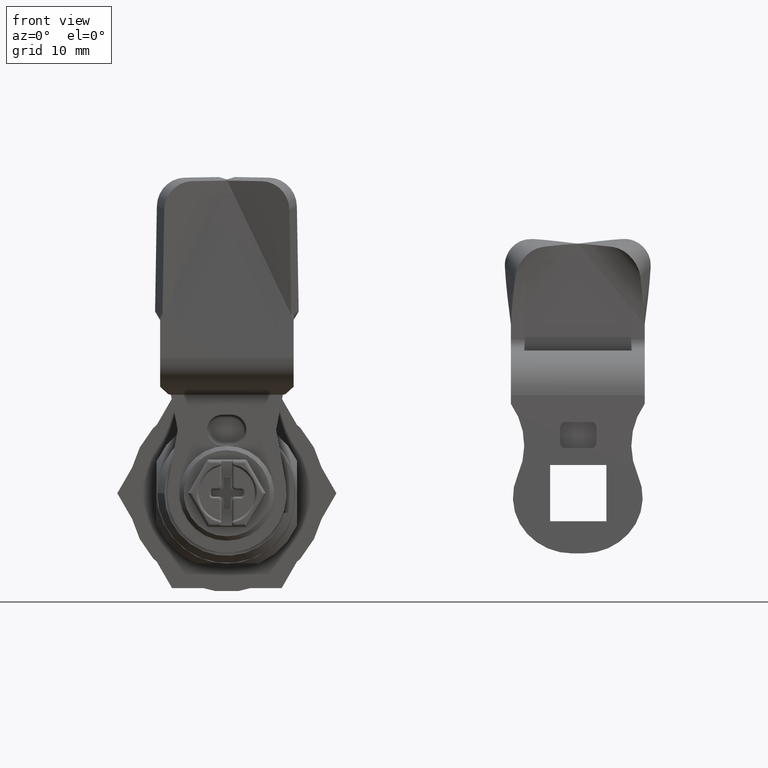
[diagram: clean part render]
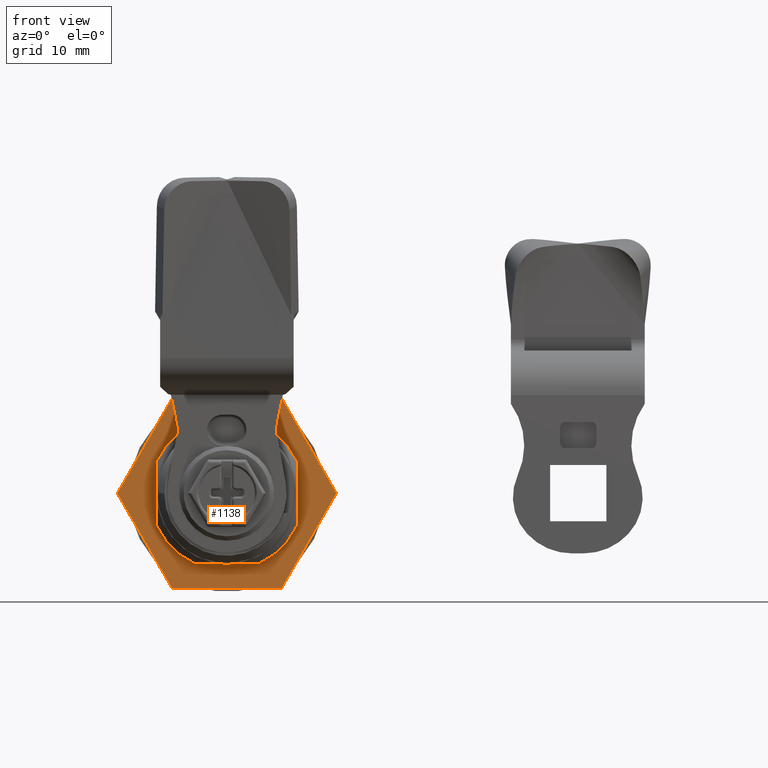
[diagram: same view with one face highlighted and labeled with its STEP entity id]
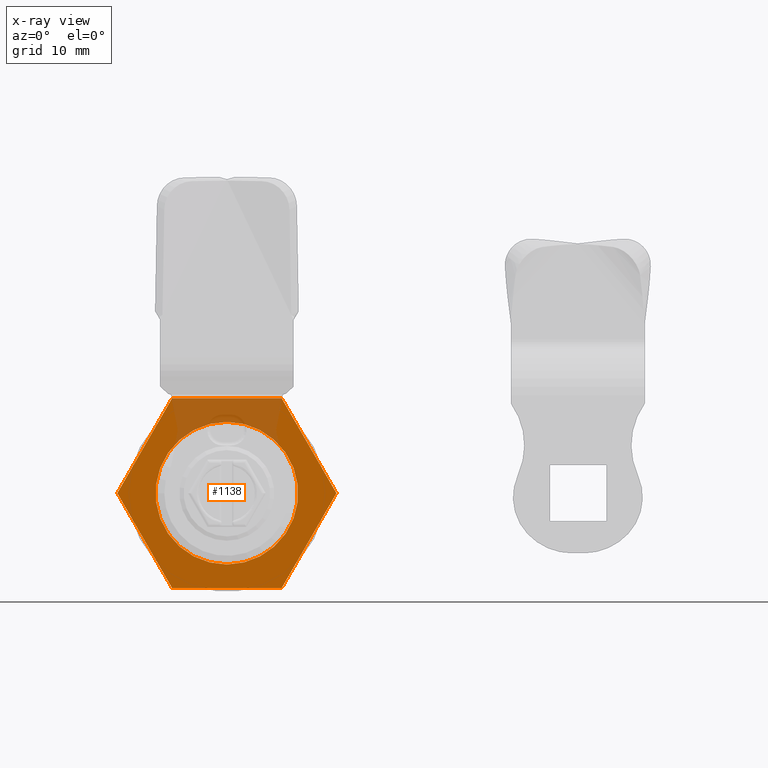
[diagram: x-ray of the same camera — body ghosted, the highlighted face saturated]
A machine part, front view. The second image highlights one B-rep face of the part: STEP entity #1138.
The next image is the same camera in x-ray: the body ghosted, the highlighted face saturated — about 21% of this face is hidden behind the body in this view.
In plain terms, the highlighted planar face has unit normal (0, -1, 0).
Its self-contained STEP definition (entity closure, byte-faithful):
#105 = DIRECTION ( 'NONE',  ( 1.000000000000000000, 0.000000000000000000, 0.000000000000000000 ) ) ;
#149 = CARTESIAN_POINT ( 'NONE',  ( 0.000000000000000000, -0.2354803149606299328, 0.000000000000000000 ) ) ;
#1138 = ADVANCED_FACE ( 'NONE', ( #6311, #11542 ), #1168, .T. ) ;
#1147 = ORIENTED_EDGE ( 'NONE', *, *, #7210, .F. ) ;
#1168 = PLANE ( 'NONE',  #11420 ) ;
#1376 = LINE ( 'NONE', #12886, #12611 ) ;
#1441 = VECTOR ( 'NONE', #1723, 39.37007874015748143 ) ;
#1636 = ORIENTED_EDGE ( 'NONE', *, *, #10264, .F. ) ;
#1723 = DIRECTION ( 'NONE',  ( 0.5000000000000169864, 0.000000000000000000, -0.8660254037844288266 ) ) ;
#1770 = VERTEX_POINT ( 'NONE', #11236 ) ;
#2531 = DIRECTION ( 'NONE',  ( -0.5000000000000169864, 0.000000000000000000, -0.8660254037844288266 ) ) ;
#2739 = LINE ( 'NONE', #10854, #8420 ) ;
#3130 = LINE ( 'NONE', #10432, #7232 ) ;
#3336 = VECTOR ( 'NONE', #7666, 39.37007874015748143 ) ;
#3346 = EDGE_LOOP ( 'NONE', ( #9291, #8832, #1636, #5020, #10795, #1147 ) ) ;
#3469 = VERTEX_POINT ( 'NONE', #12588 ) ;
#3529 = DIRECTION ( 'NONE',  ( -1.000000000000000000, 0.000000000000000000, 0.000000000000000000 ) ) ;
#3814 = CARTESIAN_POINT ( 'NONE',  ( 0.3068593950417323191, -0.2354803149606299328, 0.5314960629921260393 ) ) ;
#4135 = DIRECTION ( 'NONE',  ( -0.5000000000000169864, 0.000000000000000000, 0.8660254037844288266 ) ) ;
#4327 = DIRECTION ( 'NONE',  ( 0.000000000000000000, 1.000000000000000000, 0.000000000000000000 ) ) ;
#4718 = VERTEX_POINT ( 'NONE', #7625 ) ;
#4871 = VERTEX_POINT ( 'NONE', #12694 ) ;
#5020 = ORIENTED_EDGE ( 'NONE', *, *, #10899, .F. ) ;
#5126 = CARTESIAN_POINT ( 'NONE',  ( 0.3068593950417244365, -0.2354803149606299328, -0.5314960629921260393 ) ) ;
#5160 = VECTOR ( 'NONE', #105, 39.37007874015748143 ) ;
#5286 = CARTESIAN_POINT ( 'NONE',  ( -0.3068593950417244365, -0.2354803149606299328, 0.5314960629921260393 ) ) ;
#5797 = CARTESIAN_POINT ( 'NONE',  ( -0.6137187900834685239, -0.2354803149606299328, 0.000000000000000000 ) ) ;
#5834 = ORIENTED_EDGE ( 'NONE', *, *, #13167, .T. ) ;
#6311 = FACE_OUTER_BOUND ( 'NONE', #3346, .T. ) ;
#6368 = EDGE_CURVE ( 'NONE', #11856, #3469, #9911, .T. ) ;
#6437 = EDGE_CURVE ( 'NONE', #10842, #11856, #11283, .T. ) ;
#6500 = DIRECTION ( 'NONE',  ( -1.000000000000000000, 0.000000000000000000, 0.000000000000000000 ) ) ;
#6614 = EDGE_CURVE ( 'NONE', #8926, #1770, #1376, .T. ) ;
#6666 = LINE ( 'NONE', #5797, #3336 ) ;
#7210 = EDGE_CURVE ( 'NONE', #3469, #8926, #2739, .T. ) ;
#7232 = VECTOR ( 'NONE', #4135, 39.37007874015748143 ) ;
#7260 = DIRECTION ( 'NONE',  ( 0.000000000000000000, -1.000000000000000000, 0.000000000000000000 ) ) ;
#7562 = DIRECTION ( 'NONE',  ( 0.000000000000000000, 0.000000000000000000, 1.000000000000000000 ) ) ;
#7625 = CARTESIAN_POINT ( 'NONE',  ( 0.000000000000000000, -0.2354803149606299328, 0.3994006913682532911 ) ) ;
#7666 = DIRECTION ( 'NONE',  ( 0.5000000000000169864, 0.000000000000000000, 0.8660254037844288266 ) ) ;
#8420 = VECTOR ( 'NONE', #2531, 39.37007874015748143 ) ;
#8832 = ORIENTED_EDGE ( 'NONE', *, *, #6437, .F. ) ;
#8926 = VERTEX_POINT ( 'NONE', #5126 ) ;
#9149 = EDGE_LOOP ( 'NONE', ( #5834 ) ) ;
#9291 = ORIENTED_EDGE ( 'NONE', *, *, #6368, .F. ) ;
#9435 = CARTESIAN_POINT ( 'NONE',  ( -0.3068593950417177751, -0.2354803149606299328, 0.5314960629921260393 ) ) ;
#9911 = LINE ( 'NONE', #3814, #1441 ) ;
#10264 = EDGE_CURVE ( 'NONE', #4871, #10842, #6666, .T. ) ;
#10432 = CARTESIAN_POINT ( 'NONE',  ( -0.3068593950417323191, -0.2354803149606299328, -0.5314960629921260393 ) ) ;
#10611 = CIRCLE ( 'NONE', #11491, 0.3994006913682532911 ) ;
#10795 = ORIENTED_EDGE ( 'NONE', *, *, #6614, .F. ) ;
#10842 = VERTEX_POINT ( 'NONE', #5286 ) ;
#10854 = CARTESIAN_POINT ( 'NONE',  ( 0.6137187900834685239, -0.2354803149606299328, 0.000000000000000000 ) ) ;
#10899 = EDGE_CURVE ( 'NONE', #1770, #4871, #3130, .T. ) ;
#11236 = CARTESIAN_POINT ( 'NONE',  ( -0.3068593950417323191, -0.2354803149606299328, -0.5314960629921260393 ) ) ;
#11283 = LINE ( 'NONE', #9435, #5160 ) ;
#11420 = AXIS2_PLACEMENT_3D ( 'NONE', #149, #7260, #6500 ) ;
#11491 = AXIS2_PLACEMENT_3D ( 'NONE', #11593, #4327, #7562 ) ;
#11542 = FACE_BOUND ( 'NONE', #9149, .T. ) ;
#11547 = CARTESIAN_POINT ( 'NONE',  ( 0.3068593950417323191, -0.2354803149606299328, 0.5314960629921260393 ) ) ;
#11593 = CARTESIAN_POINT ( 'NONE',  ( 0.000000000000000000, -0.2354803149606299328, 0.000000000000000000 ) ) ;
#11856 = VERTEX_POINT ( 'NONE', #11547 ) ;
#12588 = CARTESIAN_POINT ( 'NONE',  ( 0.6137187900834685239, -0.2354803149606299328, 0.000000000000000000 ) ) ;
#12611 = VECTOR ( 'NONE', #3529, 39.37007874015748143 ) ;
#12694 = CARTESIAN_POINT ( 'NONE',  ( -0.6137187900834685239, -0.2354803149606299328, 0.000000000000000000 ) ) ;
#12886 = CARTESIAN_POINT ( 'NONE',  ( 0.3068593950417177751, -0.2354803149606299328, -0.5314960629921260393 ) ) ;
#13167 = EDGE_CURVE ( 'NONE', #4718, #4718, #10611, .T. ) ;